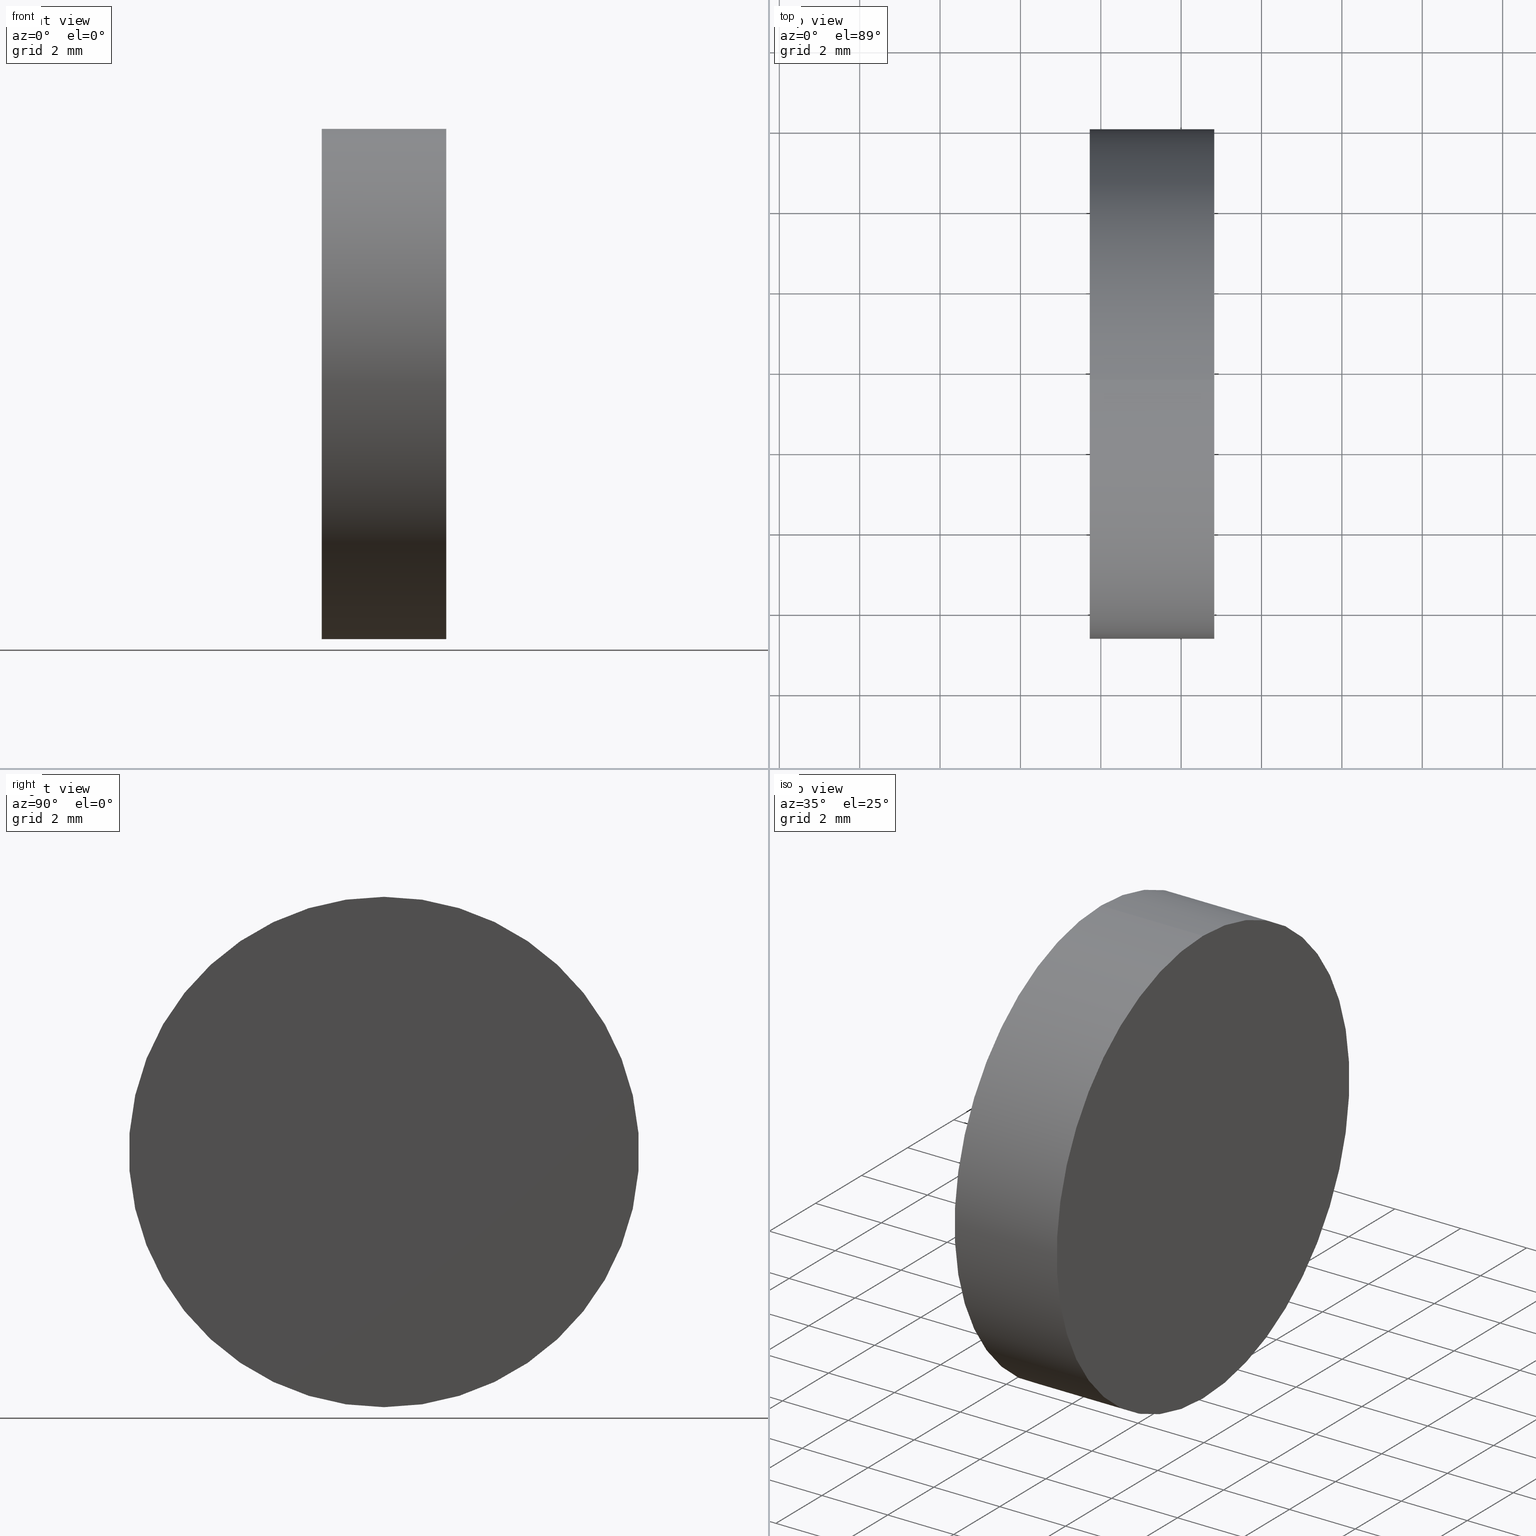
[diagram: canonical four-view strip — front | top / right | iso, engineering-drawing reading convention]
A machine part, canonical four-view strip (front | top / right | iso — engineering-drawing reading convention). The complete STEP part file that produces these views, byte-faithful:
ISO-10303-21;
HEADER;
FILE_DESCRIPTION (( 'STEP AP214' ),
    '1' );
FILE_NAME ('431008.STEP',
    '2019-10-23T06:18:13',
    ( '' ),
    ( '' ),
    'SwSTEP 2.0',
    'SolidWorks 2016',
    '' );
FILE_SCHEMA (( 'AUTOMOTIVE_DESIGN' ));
ENDSEC;

DATA;
#1 =( NAMED_UNIT ( * ) SI_UNIT ( $, .STERADIAN. ) SOLID_ANGLE_UNIT ( ) );
#2 = SURFACE_SIDE_STYLE ('',( #71 ) ) ;
#3 = SURFACE_STYLE_USAGE ( .BOTH. , #2 ) ;
#4 = VERTEX_POINT ( 'NONE', #17 ) ;
#5 = FACE_OUTER_BOUND ( 'NONE', #79, .T. ) ;
#6 = SURFACE_SIDE_STYLE ('',( #8 ) ) ;
#7 = UNCERTAINTY_MEASURE_WITH_UNIT (LENGTH_MEASURE( 1.000000000000000100E-005 ), #107, 'distance_accuracy_value', 'NONE');
#8 = SURFACE_STYLE_FILL_AREA ( #40 ) ;
#9 = FACE_OUTER_BOUND ( 'NONE', #20, .T. ) ;
#10 = AXIS2_PLACEMENT_3D ( 'NONE', #75, #74, #38 ) ;
#11 = ADVANCED_FACE ( 'NONE', ( #129 ), #93, .T. ) ;
#12 = ORIENTED_EDGE ( 'NONE', *, *, #119, .T. ) ;
#13 = ORIENTED_EDGE ( 'NONE', *, *, #70, .F. ) ;
#14 = PRODUCT_RELATED_PRODUCT_CATEGORY ( 'part', '', ( #113 ) ) ;
#15 = DIRECTION ( 'NONE',  ( -1.000000000000000000, -0.0000000000000000000, -0.0000000000000000000 ) ) ;
#16 = CARTESIAN_POINT ( 'NONE',  ( 259.7243528930642900, 83.64317934901542600, 0.0000000000000000000 ) ) ;
#17 = CARTESIAN_POINT ( 'NONE',  ( 259.7243528930642900, 83.64317934901542600, -6.349999999999994300 ) ) ;
#18 = DIRECTION ( 'NONE',  ( -1.000000000000000000, -0.0000000000000000000, -0.0000000000000000000 ) ) ;
#19 = DIRECTION ( 'NONE',  ( -1.000000000000000000, 0.0000000000000000000, -0.0000000000000000000 ) ) ;
#20 = EDGE_LOOP ( 'NONE', ( #120, #99 ) ) ;
#21 = CARTESIAN_POINT ( 'NONE',  ( 254.0008019926160300, 83.64317934901542600, 6.349999999999994300 ) ) ;
#22 = AXIS2_PLACEMENT_3D ( 'NONE', #49, #118, #139 ) ;
#23 = SURFACE_STYLE_USAGE ( .BOTH. , #6 ) ;
#24 = EDGE_LOOP ( 'NONE', ( #138, #91, #92, #36 ) ) ;
#25 = MECHANICAL_DESIGN_GEOMETRIC_PRESENTATION_REPRESENTATION (  '', ( #30 ), #37 ) ;
#26 = ADVANCED_BREP_SHAPE_REPRESENTATION ( '431008', ( #66, #80 ), #102 ) ;
#27 = VECTOR ( 'NONE', #86, 1000.000000000000000 ) ;
#28 = CARTESIAN_POINT ( 'NONE',  ( 254.0008019926160300, 83.64317934901542600, -6.349999999999994300 ) ) ;
#29 = FACE_OUTER_BOUND ( 'NONE', #41, .T. ) ;
#30 = STYLED_ITEM ( 'NONE', ( #88 ), #66 ) ;
#31 = CARTESIAN_POINT ( 'NONE',  ( 262.8243528930643200, 83.64317934901542600, 0.0000000000000000000 ) ) ;
#32 = DIRECTION ( 'NONE',  ( -1.000000000000000000, -0.0000000000000000000, -0.0000000000000000000 ) ) ;
#33 = DIRECTION ( 'NONE',  ( 0.0000000000000000000, 0.0000000000000000000, 1.000000000000000000 ) ) ;
#34 = PRODUCT_DEFINITION ( 'δ֪', '', #84, #114 ) ;
#35 = UNCERTAINTY_MEASURE_WITH_UNIT (LENGTH_MEASURE( 1.000000000000000100E-005 ), #43, 'distance_accuracy_value', 'NONE');
#36 = ORIENTED_EDGE ( 'NONE', *, *, #125, .F. ) ;
#37 =( GEOMETRIC_REPRESENTATION_CONTEXT ( 3 ) GLOBAL_UNCERTAINTY_ASSIGNED_CONTEXT ( ( #7 ) ) GLOBAL_UNIT_ASSIGNED_CONTEXT ( ( #107, #105, #100 ) ) REPRESENTATION_CONTEXT ( 'NONE', 'WORKASPACE' ) );
#38 = DIRECTION ( 'NONE',  ( 0.0000000000000000000, 0.0000000000000000000, 1.000000000000000000 ) ) ;
#39 = PRESENTATION_LAYER_ASSIGNMENT (  '', '', ( #30 ) ) ;
#40 = FILL_AREA_STYLE ('',( #131 ) ) ;
#41 = EDGE_LOOP ( 'NONE', ( #42, #12, #72, #13 ) ) ;
#42 = ORIENTED_EDGE ( 'NONE', *, *, #53, .F. ) ;
#43 =( LENGTH_UNIT ( ) NAMED_UNIT ( * ) SI_UNIT ( .MILLI., .METRE. ) );
#44 = APPLICATION_CONTEXT ( 'automotive_design' ) ;
#45 = DIRECTION ( 'NONE',  ( 0.0000000000000000000, 0.0000000000000000000, 1.000000000000000000 ) ) ;
#46 = EDGE_CURVE ( 'NONE', #106, #55, #48, .T. ) ;
#47 = ADVANCED_FACE ( 'NONE', ( #29 ), #115, .T. ) ;
#48 = CIRCLE ( 'NONE', #10, 6.349999999999994300 ) ;
#49 = CARTESIAN_POINT ( 'NONE',  ( 254.0008019926160300, 83.64317934901542600, 0.0000000000000000000 ) ) ;
#50 = DIRECTION ( 'NONE',  ( -1.000000000000000000, -0.0000000000000000000, -0.0000000000000000000 ) ) ;
#51 = AXIS2_PLACEMENT_3D ( 'NONE', #31, #19, #87 ) ;
#52 = CARTESIAN_POINT ( 'NONE',  ( 259.7243528930642900, 83.64317934901542600, 0.0000000000000000000 ) ) ;
#53 = EDGE_CURVE ( 'NONE', #55, #4, #108, .T. ) ;
#54 = APPLICATION_PROTOCOL_DEFINITION ( 'draft international standard', 'automotive_design', 1998, #44 ) ;
#55 = VERTEX_POINT ( 'NONE', #104 ) ;
#56 = ADVANCED_FACE ( 'NONE', ( #9 ), #116, .F. ) ;
#57 = PRESENTATION_STYLE_ASSIGNMENT (( #23 ) ) ;
#58 = CIRCLE ( 'NONE', #97, 6.349999999999994300 ) ;
#59 = COLOUR_RGB ( '',1.000000000000000000, 1.000000000000000000, 1.000000000000000000 ) ;
#60 =( LENGTH_UNIT ( ) NAMED_UNIT ( * ) SI_UNIT ( .MILLI., .METRE. ) );
#61 = ORIENTED_EDGE ( 'NONE', *, *, #119, .F. ) ;
#62 = CARTESIAN_POINT ( 'NONE',  ( 259.7243528930642900, 83.64317934901542600, 0.0000000000000000000 ) ) ;
#63 = PLANE ( 'NONE',  #51 ) ;
#64 =( GEOMETRIC_REPRESENTATION_CONTEXT ( 3 ) GLOBAL_UNCERTAINTY_ASSIGNED_CONTEXT ( ( #35 ) ) GLOBAL_UNIT_ASSIGNED_CONTEXT ( ( #43, #110, #112 ) ) REPRESENTATION_CONTEXT ( 'NONE', 'WORKASPACE' ) );
#65 = CIRCLE ( 'NONE', #124, 6.349999999999994300 ) ;
#66 = MANIFOLD_SOLID_BREP ( '��ת1', #123 ) ;
#67 = VECTOR ( 'NONE', #15, 1000.000000000000000 ) ;
#68 = PRESENTATION_LAYER_ASSIGNMENT (  '', '', ( #109 ) ) ;
#69 = CARTESIAN_POINT ( 'NONE',  ( 254.0008019926160300, 83.64317934901542600, 0.0000000000000000000 ) ) ;
#70 = EDGE_CURVE ( 'NONE', #4, #137, #58, .T. ) ;
#71 = SURFACE_STYLE_FILL_AREA ( #127 ) ;
#72 = ORIENTED_EDGE ( 'NONE', *, *, #125, .T. ) ;
#73 = DIRECTION ( 'NONE',  ( 1.000000000000000000, 0.0000000000000000000, 0.0000000000000000000 ) ) ;
#74 = DIRECTION ( 'NONE',  ( -1.000000000000000000, -0.0000000000000000000, -0.0000000000000000000 ) ) ;
#75 = CARTESIAN_POINT ( 'NONE',  ( 262.8243528930643200, 83.64317934901542600, 0.0000000000000000000 ) ) ;
#76 = LINE ( 'NONE', #21, #27 ) ;
#77 = DIRECTION ( 'NONE',  ( -1.000000000000000000, -0.0000000000000000000, -0.0000000000000000000 ) ) ;
#78 = DIRECTION ( 'NONE',  ( 1.000000000000000000, 0.0000000000000000000, 0.0000000000000000000 ) ) ;
#79 = EDGE_LOOP ( 'NONE', ( #134, #61 ) ) ;
#80 = AXIS2_PLACEMENT_3D ( 'NONE', #89, #45, #78 ) ;
#81 = APPLICATION_CONTEXT ( 'automotive_design' ) ;
#82 = MECHANICAL_DESIGN_GEOMETRIC_PRESENTATION_REPRESENTATION (  '', ( #109 ), #64 ) ;
#83 = EDGE_CURVE ( 'NONE', #137, #4, #65, .T. ) ;
#84 = PRODUCT_DEFINITION_FORMATION_WITH_SPECIFIED_SOURCE ( '�κ�', '', #113, .NOT_KNOWN. ) ;
#85 = DIRECTION ( 'NONE',  ( 0.0000000000000000000, 0.0000000000000000000, -1.000000000000000000 ) ) ;
#86 = DIRECTION ( 'NONE',  ( -1.000000000000000000, -0.0000000000000000000, -0.0000000000000000000 ) ) ;
#87 = DIRECTION ( 'NONE',  ( -0.0000000000000000000, 0.0000000000000000000, 1.000000000000000000 ) ) ;
#88 = PRESENTATION_STYLE_ASSIGNMENT (( #3 ) ) ;
#89 = CARTESIAN_POINT ( 'NONE',  ( 0.0000000000000000000, 0.0000000000000000000, 0.0000000000000000000 ) ) ;
#90 = AXIS2_PLACEMENT_3D ( 'NONE', #16, #73, #85 ) ;
#91 = ORIENTED_EDGE ( 'NONE', *, *, #53, .T. ) ;
#92 = ORIENTED_EDGE ( 'NONE', *, *, #83, .F. ) ;
#93 = CYLINDRICAL_SURFACE ( 'NONE', #22, 6.349999999999994300 ) ;
#94 = FILL_AREA_STYLE_COLOUR ( '', #59 ) ;
#95 = PRODUCT_DEFINITION_SHAPE ( 'NONE', 'NONE',  #34 ) ;
#96 = DIRECTION ( 'NONE',  ( 0.0000000000000000000, 0.0000000000000000000, 1.000000000000000000 ) ) ;
#97 = AXIS2_PLACEMENT_3D ( 'NONE', #62, #32, #33 ) ;
#98 = CARTESIAN_POINT ( 'NONE',  ( 262.8243528930643200, 83.64317934901542600, 0.0000000000000000000 ) ) ;
#99 = ORIENTED_EDGE ( 'NONE', *, *, #70, .T. ) ;
#100 =( NAMED_UNIT ( * ) SI_UNIT ( $, .STERADIAN. ) SOLID_ANGLE_UNIT ( ) );
#101 = PRODUCT_CONTEXT ( 'NONE', #81, 'mechanical' ) ;
#102 =( GEOMETRIC_REPRESENTATION_CONTEXT ( 3 ) GLOBAL_UNCERTAINTY_ASSIGNED_CONTEXT ( ( #117 ) ) GLOBAL_UNIT_ASSIGNED_CONTEXT ( ( #60, #126, #1 ) ) REPRESENTATION_CONTEXT ( 'NONE', 'WORKASPACE' ) );
#103 = SHAPE_DEFINITION_REPRESENTATION ( #95, #26 ) ;
#104 = CARTESIAN_POINT ( 'NONE',  ( 262.8243528930643200, 83.64317934901542600, -6.349999999999994300 ) ) ;
#105 =( NAMED_UNIT ( * ) PLANE_ANGLE_UNIT ( ) SI_UNIT ( $, .RADIAN. ) );
#106 = VERTEX_POINT ( 'NONE', #121 ) ;
#107 =( LENGTH_UNIT ( ) NAMED_UNIT ( * ) SI_UNIT ( .MILLI., .METRE. ) );
#108 = LINE ( 'NONE', #28, #67 ) ;
#109 = STYLED_ITEM ( 'NONE', ( #57 ), #26 ) ;
#110 =( NAMED_UNIT ( * ) PLANE_ANGLE_UNIT ( ) SI_UNIT ( $, .RADIAN. ) );
#111 = APPLICATION_PROTOCOL_DEFINITION ( 'draft international standard', 'automotive_design', 1998, #81 ) ;
#112 =( NAMED_UNIT ( * ) SI_UNIT ( $, .STERADIAN. ) SOLID_ANGLE_UNIT ( ) );
#113 = PRODUCT ( '431008', '431008', '', ( #101 ) ) ;
#114 = PRODUCT_DEFINITION_CONTEXT ( 'detailed design', #44, 'design' ) ;
#115 = CYLINDRICAL_SURFACE ( 'NONE', #140, 6.349999999999994300 ) ;
#116 = PLANE ( 'NONE',  #90 ) ;
#117 = UNCERTAINTY_MEASURE_WITH_UNIT (LENGTH_MEASURE( 1.000000000000000100E-005 ), #60, 'distance_accuracy_value', 'NONE');
#118 = DIRECTION ( 'NONE',  ( -1.000000000000000000, -0.0000000000000000000, -0.0000000000000000000 ) ) ;
#119 = EDGE_CURVE ( 'NONE', #55, #106, #133, .T. ) ;
#120 = ORIENTED_EDGE ( 'NONE', *, *, #83, .T. ) ;
#121 = CARTESIAN_POINT ( 'NONE',  ( 262.8243528930643200, 83.64317934901542600, 6.349999999999994300 ) ) ;
#122 = CARTESIAN_POINT ( 'NONE',  ( 259.7243528930642900, 83.64317934901542600, 6.349999999999994300 ) ) ;
#123 = CLOSED_SHELL ( 'NONE', ( #11, #136, #47, #56 ) ) ;
#124 = AXIS2_PLACEMENT_3D ( 'NONE', #52, #77, #128 ) ;
#125 = EDGE_CURVE ( 'NONE', #106, #137, #76, .T. ) ;
#126 =( NAMED_UNIT ( * ) PLANE_ANGLE_UNIT ( ) SI_UNIT ( $, .RADIAN. ) );
#127 = FILL_AREA_STYLE ('',( #94 ) ) ;
#128 = DIRECTION ( 'NONE',  ( 0.0000000000000000000, 0.0000000000000000000, 1.000000000000000000 ) ) ;
#129 = FACE_OUTER_BOUND ( 'NONE', #24, .T. ) ;
#130 = DIRECTION ( 'NONE',  ( 0.0000000000000000000, 0.0000000000000000000, 1.000000000000000000 ) ) ;
#131 = FILL_AREA_STYLE_COLOUR ( '', #135 ) ;
#132 = AXIS2_PLACEMENT_3D ( 'NONE', #98, #18, #130 ) ;
#133 = CIRCLE ( 'NONE', #132, 6.349999999999994300 ) ;
#134 = ORIENTED_EDGE ( 'NONE', *, *, #46, .F. ) ;
#135 = COLOUR_RGB ( '',1.000000000000000000, 1.000000000000000000, 1.000000000000000000 ) ;
#136 = ADVANCED_FACE ( 'NONE', ( #5 ), #63, .F. ) ;
#137 = VERTEX_POINT ( 'NONE', #122 ) ;
#138 = ORIENTED_EDGE ( 'NONE', *, *, #46, .T. ) ;
#139 = DIRECTION ( 'NONE',  ( 0.0000000000000000000, 0.0000000000000000000, 1.000000000000000000 ) ) ;
#140 = AXIS2_PLACEMENT_3D ( 'NONE', #69, #50, #96 ) ;
ENDSEC;
END-ISO-10303-21;
